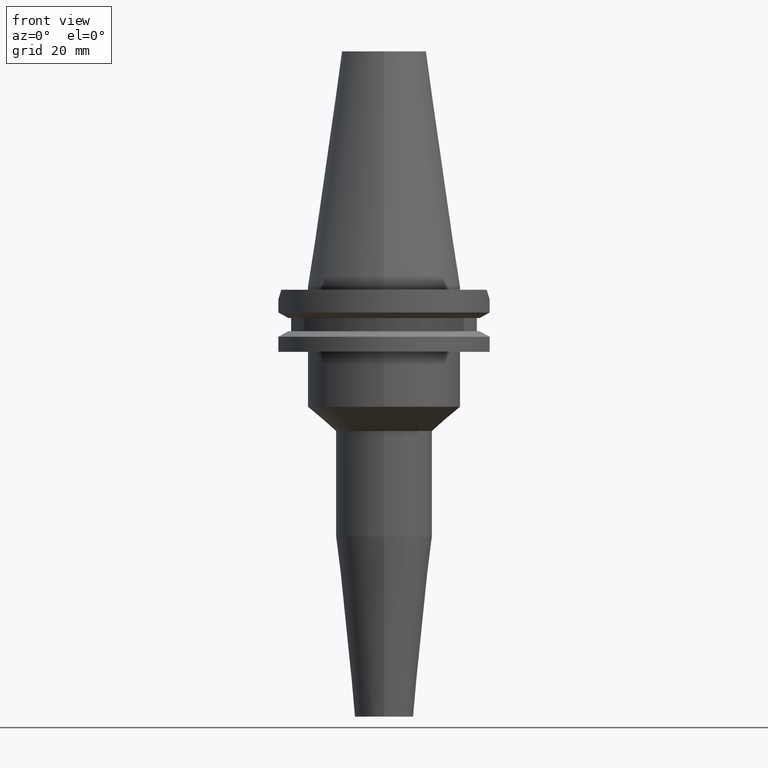
[diagram: clean part render]
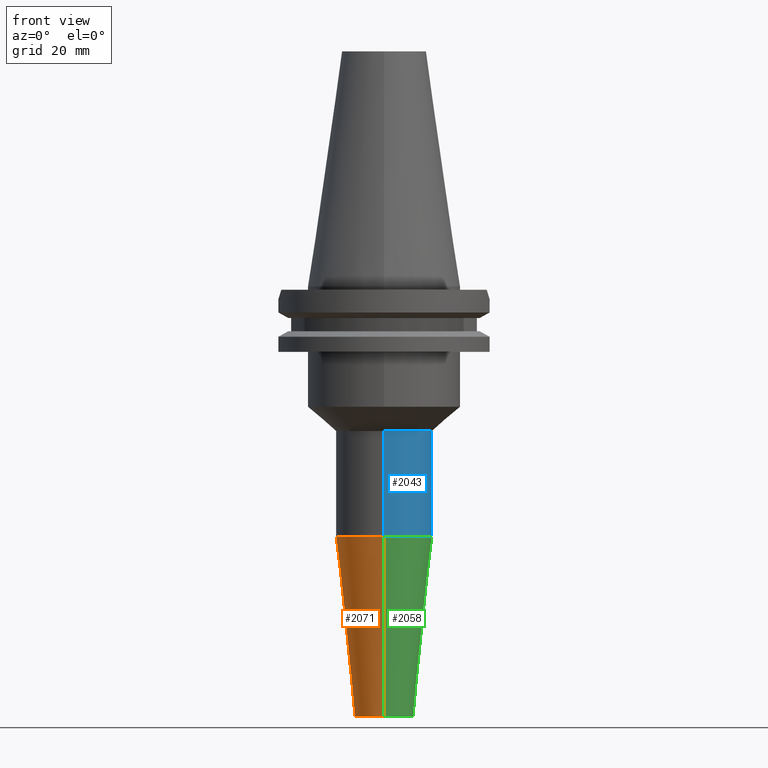
[diagram: same view with three faces highlighted in distinct colors, each labeled with its STEP entity id]
A machine part, front view with three faces highlighted in distinct colors.
Their STEP definitions:

[orange] entity #2071 — the highlighted conical surface has half-angle 6 deg.
#922=DIRECTION('',(0.E0,-1.045284632677E-1,-9.945218953683E-1));
#923=VECTOR('',#922,5.261724728428E1);
#924=CARTESIAN_POINT('',(0.E0,1.4E1,-7.267099550178E1));
#925=LINE('',#924,#923);
#937=CARTESIAN_POINT('',(0.E0,0.E0,-7.267099550178E1));
#938=DIRECTION('',(0.E0,0.E0,1.E0));
#939=DIRECTION('',(0.E0,1.E0,0.E0));
#940=AXIS2_PLACEMENT_3D('',#937,#938,#939);
#945=DIRECTION('',(0.E0,1.045284632677E-1,-9.945218953683E-1));
#946=VECTOR('',#945,5.261724728428E1);
#947=CARTESIAN_POINT('',(0.E0,-1.4E1,-7.267099550178E1));
#948=LINE('',#947,#946);
#960=CARTESIAN_POINT('',(0.E0,0.E0,-1.25E2));
#961=DIRECTION('',(0.E0,0.E0,1.E0));
#962=DIRECTION('',(0.E0,1.E0,0.E0));
#963=AXIS2_PLACEMENT_3D('',#960,#961,#962);
#1206=CARTESIAN_POINT('',(0.E0,-8.5E0,-1.25E2));
#1207=CARTESIAN_POINT('',(0.E0,8.5E0,-1.25E2));
#1208=VERTEX_POINT('',#1206);
#1209=VERTEX_POINT('',#1207);
#1210=CARTESIAN_POINT('',(0.E0,1.4E1,-7.267099550178E1));
#1211=VERTEX_POINT('',#1210);
#1212=CARTESIAN_POINT('',(0.E0,-1.4E1,-7.267099550178E1));
#1213=VERTEX_POINT('',#1212);
#2059=CARTESIAN_POINT('',(0.E0,0.E0,-9.883549775089E1));
#2060=DIRECTION('',(0.E0,0.E0,1.E0));
#2061=DIRECTION('',(0.E0,1.E0,0.E0));
#2062=AXIS2_PLACEMENT_3D('',#2059,#2060,#2061);
#2063=CONICAL_SURFACE('',#2062,1.125E1,6.E0);
#2064=ORIENTED_EDGE('',*,*,#2049,.F.);
#2065=ORIENTED_EDGE('',*,*,#2026,.T.);
#2066=ORIENTED_EDGE('',*,*,#2053,.T.);
#2068=ORIENTED_EDGE('',*,*,#2067,.F.);
#2069=EDGE_LOOP('',(#2064,#2065,#2066,#2068));
#2070=FACE_OUTER_BOUND('',#2069,.F.);
#941=CIRCLE('',#940,1.4E1);
#964=CIRCLE('',#963,8.5E0);
#2026=EDGE_CURVE('',#1211,#1213,#941,.T.);
#2049=EDGE_CURVE('',#1211,#1209,#925,.T.);
#2053=EDGE_CURVE('',#1213,#1208,#948,.T.);
#2067=EDGE_CURVE('',#1209,#1208,#964,.T.);
#2071=ADVANCED_FACE('',(#2070),#2063,.T.);

[blue] entity #2043 — the highlighted cylindrical surface (partial cylindrical patch) has radius 14 mm, axis along (0, 0, -1).
#869=CARTESIAN_POINT('',(0.E0,0.E0,-4.202084228332E1));
#870=DIRECTION('',(0.E0,0.E0,-1.E0));
#871=DIRECTION('',(0.E0,1.E0,0.E0));
#872=AXIS2_PLACEMENT_3D('',#869,#870,#871);
#908=DIRECTION('',(0.E0,0.E0,-1.E0));
#909=VECTOR('',#908,3.065015321846E1);
#910=CARTESIAN_POINT('',(0.E0,-1.4E1,-4.202084228332E1));
#911=LINE('',#910,#909);
#915=DIRECTION('',(0.E0,0.E0,-1.E0));
#916=VECTOR('',#915,3.065015321846E1);
#917=CARTESIAN_POINT('',(0.E0,1.4E1,-4.202084228332E1));
#918=LINE('',#917,#916);
#929=CARTESIAN_POINT('',(0.E0,0.E0,-7.267099550178E1));
#930=DIRECTION('',(0.E0,0.E0,1.E0));
#931=DIRECTION('',(0.E0,-1.E0,0.E0));
#932=AXIS2_PLACEMENT_3D('',#929,#930,#931);
#1210=CARTESIAN_POINT('',(0.E0,1.4E1,-7.267099550178E1));
#1211=VERTEX_POINT('',#1210);
#1212=CARTESIAN_POINT('',(0.E0,-1.4E1,-7.267099550178E1));
#1213=VERTEX_POINT('',#1212);
#1214=CARTESIAN_POINT('',(0.E0,1.4E1,-4.202084228332E1));
#1215=VERTEX_POINT('',#1214);
#1216=CARTESIAN_POINT('',(0.E0,-1.4E1,-4.202084228332E1));
#1217=VERTEX_POINT('',#1216);
#2031=CARTESIAN_POINT('',(0.E0,2.178799736533E-14,7.79125E1));
#2032=DIRECTION('',(0.E0,0.E0,-1.E0));
#2033=DIRECTION('',(0.E0,-1.E0,0.E0));
#2034=AXIS2_PLACEMENT_3D('',#2031,#2032,#2033);
#2035=CYLINDRICAL_SURFACE('',#2034,1.4E1);
#2036=ORIENTED_EDGE('',*,*,#2021,.T.);
#2038=ORIENTED_EDGE('',*,*,#2037,.F.);
#2039=ORIENTED_EDGE('',*,*,#2024,.F.);
#2040=ORIENTED_EDGE('',*,*,#1995,.F.);
#2041=EDGE_LOOP('',(#2036,#2038,#2039,#2040));
#2042=FACE_OUTER_BOUND('',#2041,.F.);
#873=CIRCLE('',#872,1.4E1);
#933=CIRCLE('',#932,1.4E1);
#1995=EDGE_CURVE('',#1215,#1217,#873,.T.);
#2021=EDGE_CURVE('',#1215,#1211,#918,.T.);
#2024=EDGE_CURVE('',#1217,#1213,#911,.T.);
#2037=EDGE_CURVE('',#1213,#1211,#933,.T.);
#2043=ADVANCED_FACE('',(#2042),#2035,.T.);

[green] entity #2058 — the highlighted conical surface has half-angle 6 deg.
#922=DIRECTION('',(0.E0,-1.045284632677E-1,-9.945218953683E-1));
#923=VECTOR('',#922,5.261724728428E1);
#924=CARTESIAN_POINT('',(0.E0,1.4E1,-7.267099550178E1));
#925=LINE('',#924,#923);
#929=CARTESIAN_POINT('',(0.E0,0.E0,-7.267099550178E1));
#930=DIRECTION('',(0.E0,0.E0,1.E0));
#931=DIRECTION('',(0.E0,-1.E0,0.E0));
#932=AXIS2_PLACEMENT_3D('',#929,#930,#931);
#945=DIRECTION('',(0.E0,1.045284632677E-1,-9.945218953683E-1));
#946=VECTOR('',#945,5.261724728428E1);
#947=CARTESIAN_POINT('',(0.E0,-1.4E1,-7.267099550178E1));
#948=LINE('',#947,#946);
#952=CARTESIAN_POINT('',(0.E0,0.E0,-1.25E2));
#953=DIRECTION('',(0.E0,0.E0,1.E0));
#954=DIRECTION('',(0.E0,-1.E0,0.E0));
#955=AXIS2_PLACEMENT_3D('',#952,#953,#954);
#1206=CARTESIAN_POINT('',(0.E0,-8.5E0,-1.25E2));
#1207=CARTESIAN_POINT('',(0.E0,8.5E0,-1.25E2));
#1208=VERTEX_POINT('',#1206);
#1209=VERTEX_POINT('',#1207);
#1210=CARTESIAN_POINT('',(0.E0,1.4E1,-7.267099550178E1));
#1211=VERTEX_POINT('',#1210);
#1212=CARTESIAN_POINT('',(0.E0,-1.4E1,-7.267099550178E1));
#1213=VERTEX_POINT('',#1212);
#2044=CARTESIAN_POINT('',(0.E0,0.E0,-9.883549775089E1));
#2045=DIRECTION('',(0.E0,0.E0,1.E0));
#2046=DIRECTION('',(0.E0,1.E0,0.E0));
#2047=AXIS2_PLACEMENT_3D('',#2044,#2045,#2046);
#2048=CONICAL_SURFACE('',#2047,1.125E1,6.E0);
#2050=ORIENTED_EDGE('',*,*,#2049,.T.);
#2052=ORIENTED_EDGE('',*,*,#2051,.F.);
#2054=ORIENTED_EDGE('',*,*,#2053,.F.);
#2055=ORIENTED_EDGE('',*,*,#2037,.T.);
#2056=EDGE_LOOP('',(#2050,#2052,#2054,#2055));
#2057=FACE_OUTER_BOUND('',#2056,.F.);
#933=CIRCLE('',#932,1.4E1);
#956=CIRCLE('',#955,8.5E0);
#2037=EDGE_CURVE('',#1213,#1211,#933,.T.);
#2049=EDGE_CURVE('',#1211,#1209,#925,.T.);
#2051=EDGE_CURVE('',#1208,#1209,#956,.T.);
#2053=EDGE_CURVE('',#1213,#1208,#948,.T.);
#2058=ADVANCED_FACE('',(#2057),#2048,.T.);